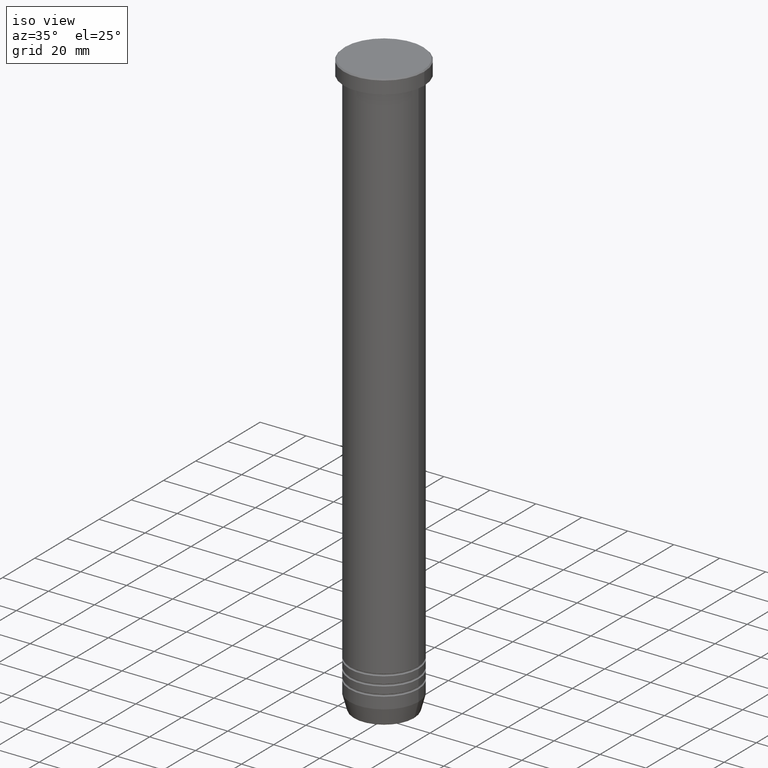
[diagram: clean part render]
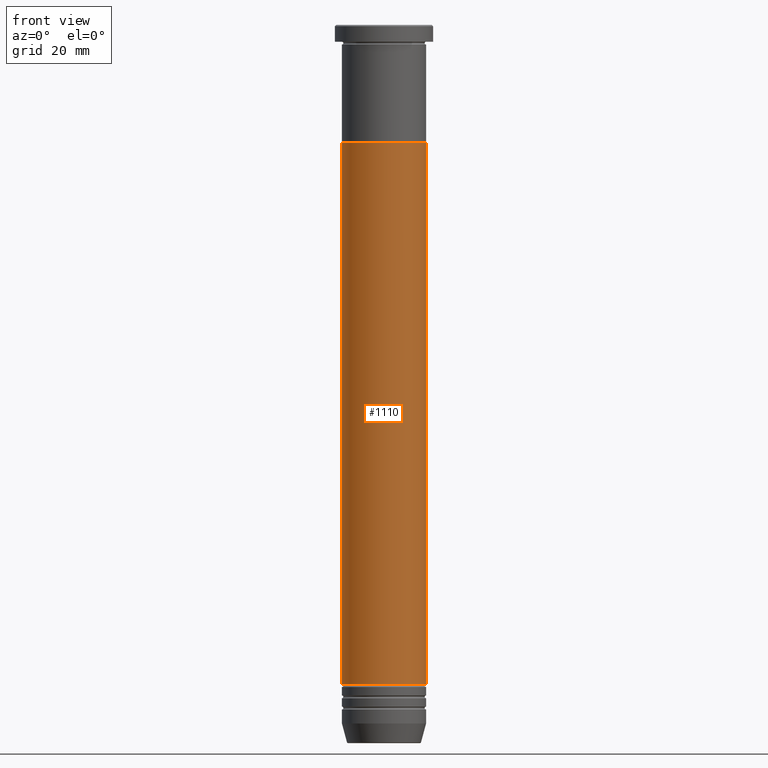
[diagram: tour spotlight — one face highlighted and labeled with its STEP entity id]
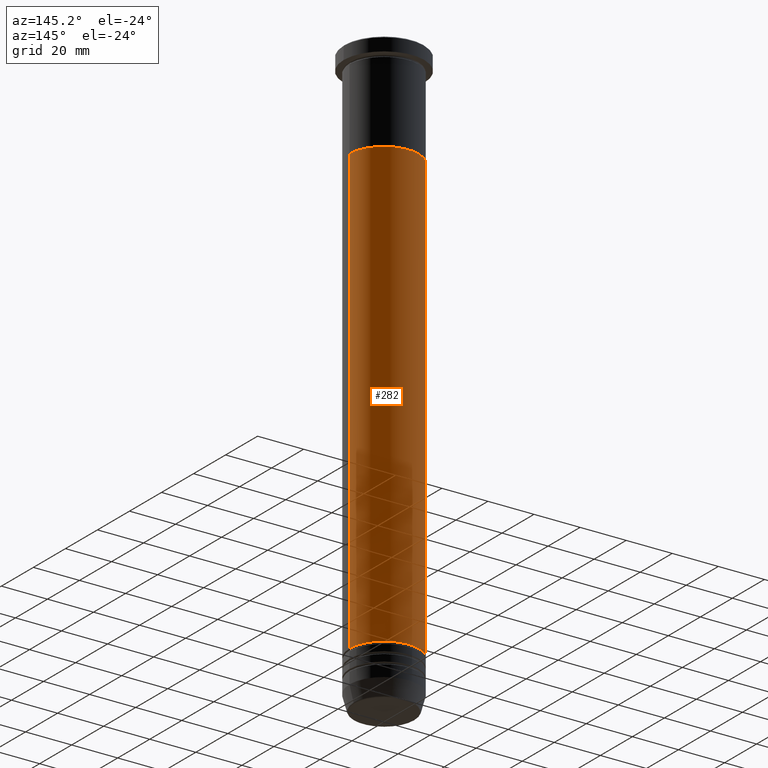
[diagram: tour spotlight — one face highlighted and labeled with its STEP entity id]
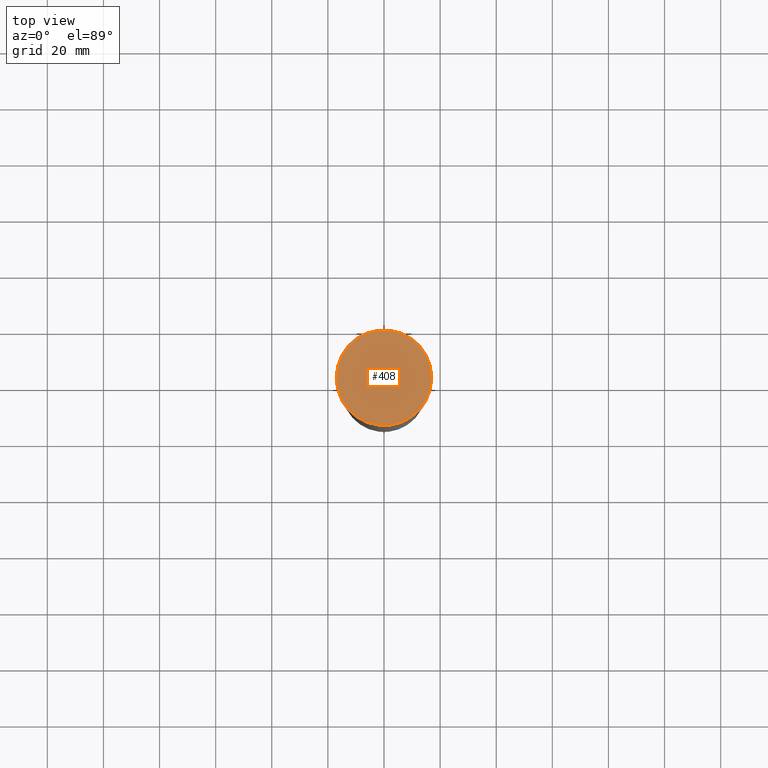
[diagram: tour spotlight — one face highlighted and labeled with its STEP entity id]
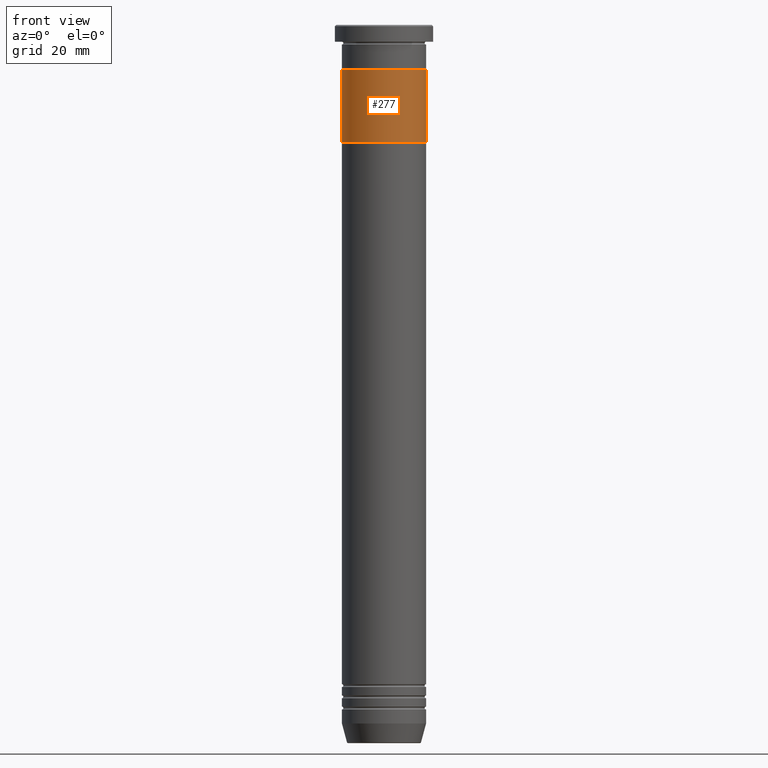
[diagram: tour spotlight — one face highlighted and labeled with its STEP entity id]
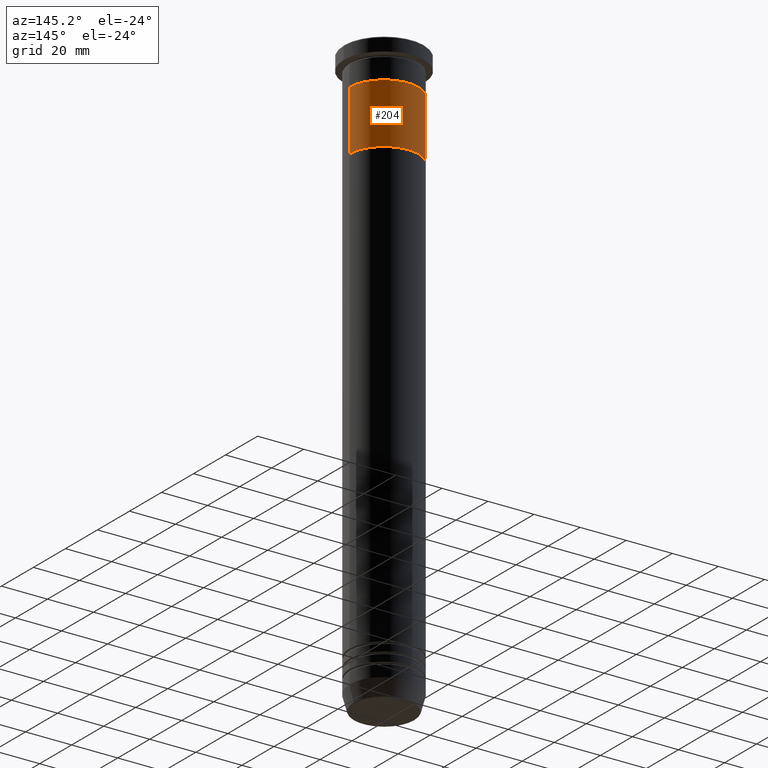
[diagram: tour spotlight — one face highlighted and labeled with its STEP entity id]
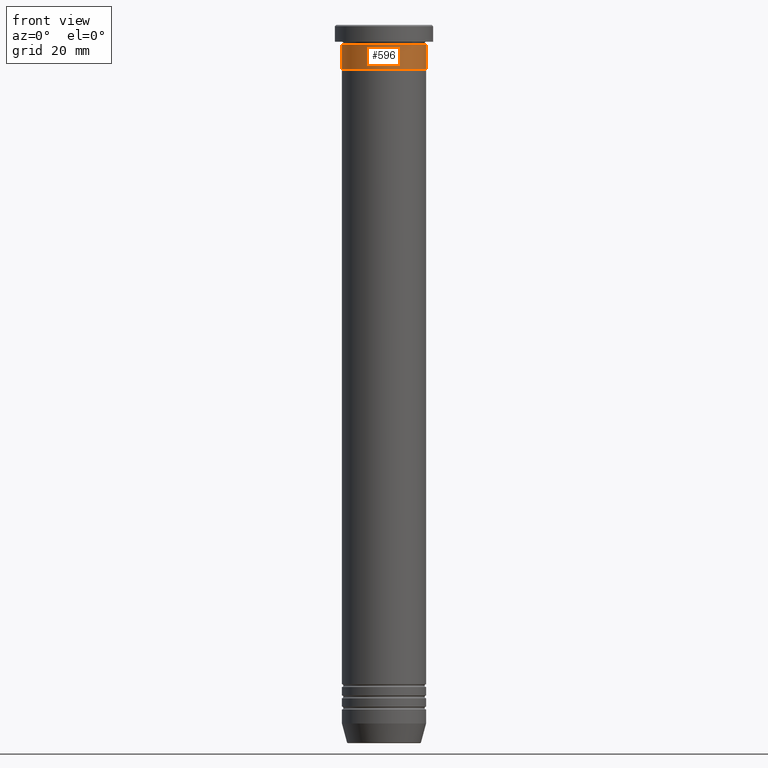
[diagram: tour spotlight — one face highlighted and labeled with its STEP entity id]
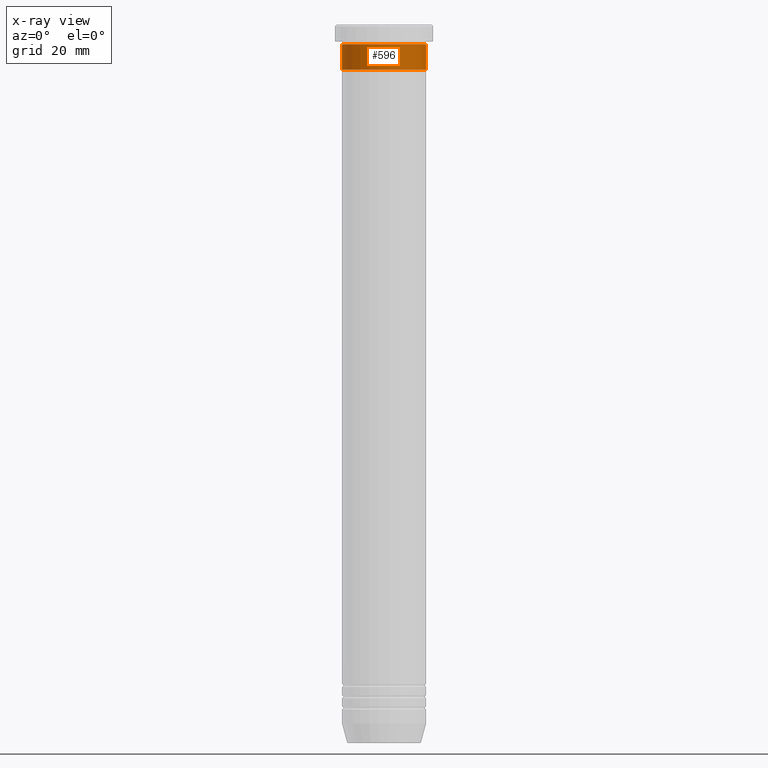
[diagram: x-ray of the same camera — body ghosted, this tour face saturated]
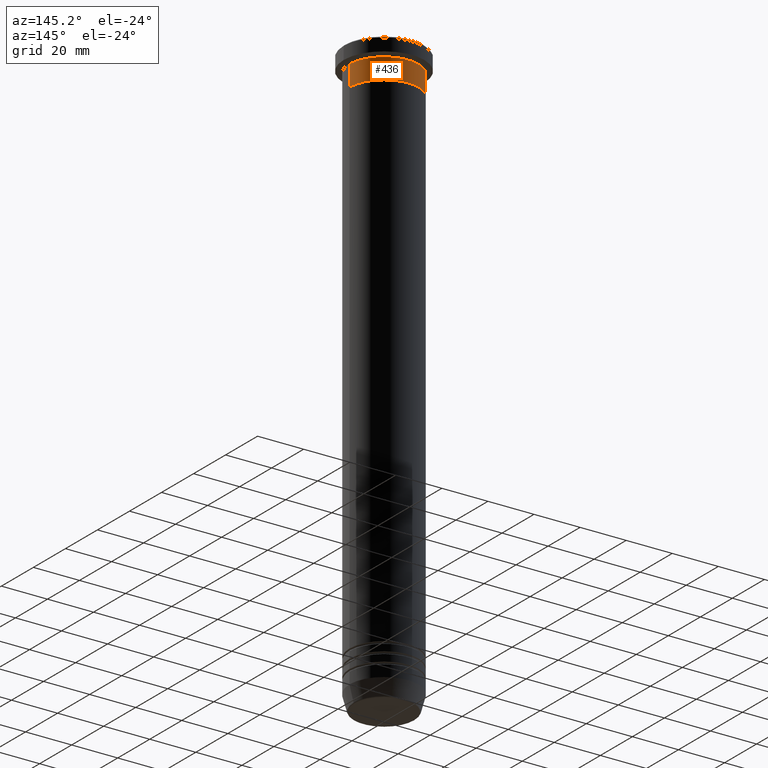
[diagram: tour spotlight — one face highlighted and labeled with its STEP entity id]
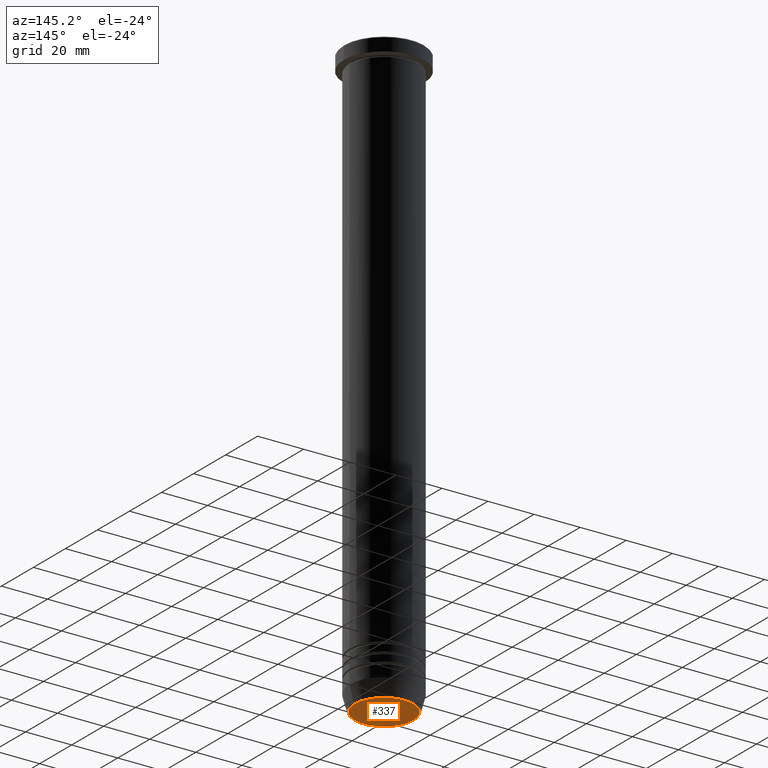
[diagram: tour spotlight — one face highlighted and labeled with its STEP entity id]
A machine part: a face-by-face anatomy tour. The part has 43 B-rep faces; the first image is the clean iso view, then the 8 largest visible faces are spotlighted one at a time (largest first), each with its STEP entity span.

Face 1 — front view, entity #1110. In plain terms, the highlighted cylindrical surface (partial cylindrical patch) has radius 15 mm, axis along (-0, -0, 1).
Definition (entity closure, byte-faithful):
#24 = EDGE_CURVE ( 'NONE', #921, #951, #678, .T. ) ;
#27 = DIRECTION ( 'NONE',  ( 1.000000000000000000, 0.000000000000000000, 0.000000000000000000 ) ) ;
#34 = CARTESIAN_POINT ( 'NONE',  ( 0.000000000000000000, 0.000000000000000000, 0.000000000000000000 ) ) ;
#46 = AXIS2_PLACEMENT_3D ( 'NONE', #960, #1044, #740 ) ;
#53 = ORIENTED_EDGE ( 'NONE', *, *, #89, .T. ) ;
#67 = LINE ( 'NONE', #246, #966 ) ;
#89 = EDGE_CURVE ( 'NONE', #318, #1130, #566, .T. ) ;
#174 = CARTESIAN_POINT ( 'NONE',  ( -14.99999999999999645, 1.836970198721029194E-15, 0.000000000000000000 ) ) ;
#246 = CARTESIAN_POINT ( 'NONE',  ( 14.99999999999999645, 0.000000000000000000, 0.000000000000000000 ) ) ;
#285 = VECTOR ( 'NONE', #631, 1000.000000000000000 ) ;
#294 = DIRECTION ( 'NONE',  ( -0.000000000000000000, -0.000000000000000000, 1.000000000000000000 ) ) ;
#318 = VERTEX_POINT ( 'NONE', #1142 ) ;
#320 = CARTESIAN_POINT ( 'NONE',  ( 14.99999999999999112, 0.000000000000000000, -235.0000000000000284 ) ) ;
#325 = AXIS2_PLACEMENT_3D ( 'NONE', #433, #521, #1055 ) ;
#351 = LINE ( 'NONE', #174, #285 ) ;
#355 = CARTESIAN_POINT ( 'NONE',  ( 15.00000000000000000, 0.000000000000000000, -41.99999999999999289 ) ) ;
#433 = CARTESIAN_POINT ( 'NONE',  ( 0.000000000000000000, 0.000000000000000000, -41.99999999999999289 ) ) ;
#521 = DIRECTION ( 'NONE',  ( -0.000000000000000000, -0.000000000000000000, 1.000000000000000000 ) ) ;
#555 = CYLINDRICAL_SURFACE ( 'NONE', #1009, 14.99999999999999645 ) ;
#566 = CIRCLE ( 'NONE', #46, 14.99999999999999112 ) ;
#571 = EDGE_LOOP ( 'NONE', ( #1088, #53, #938, #722 ) ) ;
#631 = DIRECTION ( 'NONE',  ( -0.000000000000000000, -0.000000000000000000, 1.000000000000000000 ) ) ;
#649 = EDGE_CURVE ( 'NONE', #1130, #951, #67, .T. ) ;
#678 = CIRCLE ( 'NONE', #325, 15.00000000000000000 ) ;
#705 = CARTESIAN_POINT ( 'NONE',  ( -15.00000000000000000, 1.836970198721029589E-15, -41.99999999999999289 ) ) ;
#722 = ORIENTED_EDGE ( 'NONE', *, *, #24, .F. ) ;
#740 = DIRECTION ( 'NONE',  ( 1.000000000000000000, 0.000000000000000000, 0.000000000000000000 ) ) ;
#862 = DIRECTION ( 'NONE',  ( -0.000000000000000000, -0.000000000000000000, 1.000000000000000000 ) ) ;
#916 = FACE_OUTER_BOUND ( 'NONE', #571, .T. ) ;
#921 = VERTEX_POINT ( 'NONE', #705 ) ;
#938 = ORIENTED_EDGE ( 'NONE', *, *, #649, .T. ) ;
#951 = VERTEX_POINT ( 'NONE', #355 ) ;
#960 = CARTESIAN_POINT ( 'NONE',  ( 0.000000000000000000, 0.000000000000000000, -235.0000000000000284 ) ) ;
#966 = VECTOR ( 'NONE', #862, 1000.000000000000000 ) ;
#978 = EDGE_CURVE ( 'NONE', #318, #921, #351, .T. ) ;
#1009 = AXIS2_PLACEMENT_3D ( 'NONE', #34, #294, #27 ) ;
#1044 = DIRECTION ( 'NONE',  ( -0.000000000000000000, -0.000000000000000000, 1.000000000000000000 ) ) ;
#1055 = DIRECTION ( 'NONE',  ( 1.000000000000000000, 0.000000000000000000, 0.000000000000000000 ) ) ;
#1088 = ORIENTED_EDGE ( 'NONE', *, *, #978, .F. ) ;
#1110 = ADVANCED_FACE ( 'NONE', ( #916 ), #555, .T. ) ;
#1130 = VERTEX_POINT ( 'NONE', #320 ) ;
#1142 = CARTESIAN_POINT ( 'NONE',  ( -14.99999999999999112, 1.836970198721028800E-15, -235.0000000000000284 ) ) ;

Face 2 — auxiliary view, entity #282. In plain terms, the highlighted cylindrical surface (partial cylindrical patch) has radius 15 mm, axis along (-0, -0, 1).
Definition (entity closure, byte-faithful):
#7 = AXIS2_PLACEMENT_3D ( 'NONE', #86, #529, #165 ) ;
#44 = EDGE_CURVE ( 'NONE', #951, #921, #264, .T. ) ;
#67 = LINE ( 'NONE', #246, #966 ) ;
#86 = CARTESIAN_POINT ( 'NONE',  ( 0.000000000000000000, 0.000000000000000000, -41.99999999999999289 ) ) ;
#165 = DIRECTION ( 'NONE',  ( 1.000000000000000000, 0.000000000000000000, 0.000000000000000000 ) ) ;
#166 = AXIS2_PLACEMENT_3D ( 'NONE', #516, #230, #769 ) ;
#173 = EDGE_CURVE ( 'NONE', #1130, #318, #281, .T. ) ;
#174 = CARTESIAN_POINT ( 'NONE',  ( -14.99999999999999645, 1.836970198721029194E-15, 0.000000000000000000 ) ) ;
#219 = DIRECTION ( 'NONE',  ( 1.000000000000000000, 0.000000000000000000, 0.000000000000000000 ) ) ;
#230 = DIRECTION ( 'NONE',  ( -0.000000000000000000, -0.000000000000000000, 1.000000000000000000 ) ) ;
#246 = CARTESIAN_POINT ( 'NONE',  ( 14.99999999999999645, 0.000000000000000000, 0.000000000000000000 ) ) ;
#264 = CIRCLE ( 'NONE', #7, 15.00000000000000000 ) ;
#281 = CIRCLE ( 'NONE', #1004, 14.99999999999999112 ) ;
#282 = ADVANCED_FACE ( 'NONE', ( #613 ), #594, .T. ) ;
#285 = VECTOR ( 'NONE', #631, 1000.000000000000000 ) ;
#318 = VERTEX_POINT ( 'NONE', #1142 ) ;
#320 = CARTESIAN_POINT ( 'NONE',  ( 14.99999999999999112, 0.000000000000000000, -235.0000000000000284 ) ) ;
#351 = LINE ( 'NONE', #174, #285 ) ;
#355 = CARTESIAN_POINT ( 'NONE',  ( 15.00000000000000000, 0.000000000000000000, -41.99999999999999289 ) ) ;
#516 = CARTESIAN_POINT ( 'NONE',  ( 0.000000000000000000, 0.000000000000000000, 0.000000000000000000 ) ) ;
#529 = DIRECTION ( 'NONE',  ( -0.000000000000000000, -0.000000000000000000, 1.000000000000000000 ) ) ;
#552 = ORIENTED_EDGE ( 'NONE', *, *, #173, .T. ) ;
#574 = DIRECTION ( 'NONE',  ( -0.000000000000000000, -0.000000000000000000, 1.000000000000000000 ) ) ;
#594 = CYLINDRICAL_SURFACE ( 'NONE', #166, 14.99999999999999645 ) ;
#613 = FACE_OUTER_BOUND ( 'NONE', #840, .T. ) ;
#631 = DIRECTION ( 'NONE',  ( -0.000000000000000000, -0.000000000000000000, 1.000000000000000000 ) ) ;
#649 = EDGE_CURVE ( 'NONE', #1130, #951, #67, .T. ) ;
#705 = CARTESIAN_POINT ( 'NONE',  ( -15.00000000000000000, 1.836970198721029589E-15, -41.99999999999999289 ) ) ;
#769 = DIRECTION ( 'NONE',  ( 1.000000000000000000, 0.000000000000000000, 0.000000000000000000 ) ) ;
#840 = EDGE_LOOP ( 'NONE', ( #552, #900, #1019, #901 ) ) ;
#862 = DIRECTION ( 'NONE',  ( -0.000000000000000000, -0.000000000000000000, 1.000000000000000000 ) ) ;
#900 = ORIENTED_EDGE ( 'NONE', *, *, #978, .T. ) ;
#901 = ORIENTED_EDGE ( 'NONE', *, *, #649, .F. ) ;
#921 = VERTEX_POINT ( 'NONE', #705 ) ;
#951 = VERTEX_POINT ( 'NONE', #355 ) ;
#966 = VECTOR ( 'NONE', #862, 1000.000000000000000 ) ;
#978 = EDGE_CURVE ( 'NONE', #318, #921, #351, .T. ) ;
#1004 = AXIS2_PLACEMENT_3D ( 'NONE', #1015, #574, #219 ) ;
#1015 = CARTESIAN_POINT ( 'NONE',  ( 0.000000000000000000, 0.000000000000000000, -235.0000000000000284 ) ) ;
#1019 = ORIENTED_EDGE ( 'NONE', *, *, #44, .F. ) ;
#1130 = VERTEX_POINT ( 'NONE', #320 ) ;
#1142 = CARTESIAN_POINT ( 'NONE',  ( -14.99999999999999112, 1.836970198721028800E-15, -235.0000000000000284 ) ) ;

Face 3 — top view, entity #408. In plain terms, the highlighted planar face has unit normal (0, -0, 1).
Definition (entity closure, byte-faithful):
#126 = EDGE_CURVE ( 'NONE', #989, #878, #713, .T. ) ;
#162 = CARTESIAN_POINT ( 'NONE',  ( 17.00000000000000000, 2.112515728529184067E-15, 0.000000000000000000 ) ) ;
#170 = PLANE ( 'NONE',  #519 ) ;
#193 = ORIENTED_EDGE ( 'NONE', *, *, #828, .T. ) ;
#250 = EDGE_LOOP ( 'NONE', ( #193, #517 ) ) ;
#274 = DIRECTION ( 'NONE',  ( 1.000000000000000000, 0.000000000000000000, 0.000000000000000000 ) ) ;
#275 = DIRECTION ( 'NONE',  ( 1.000000000000000000, 0.000000000000000000, 0.000000000000000000 ) ) ;
#310 = AXIS2_PLACEMENT_3D ( 'NONE', #445, #719, #274 ) ;
#408 = ADVANCED_FACE ( 'NONE', ( #1075 ), #170, .T. ) ;
#445 = CARTESIAN_POINT ( 'NONE',  ( 0.000000000000000000, 0.000000000000000000, 0.000000000000000000 ) ) ;
#473 = CARTESIAN_POINT ( 'NONE',  ( -17.00000000000000000, 0.000000000000000000, 0.000000000000000000 ) ) ;
#517 = ORIENTED_EDGE ( 'NONE', *, *, #126, .T. ) ;
#519 = AXIS2_PLACEMENT_3D ( 'NONE', #527, #720, #275 ) ;
#527 = CARTESIAN_POINT ( 'NONE',  ( 0.000000000000000000, 0.000000000000000000, 0.000000000000000000 ) ) ;
#620 = AXIS2_PLACEMENT_3D ( 'NONE', #922, #761, #835 ) ;
#684 = CIRCLE ( 'NONE', #310, 17.00000000000000000 ) ;
#713 = CIRCLE ( 'NONE', #620, 17.00000000000000000 ) ;
#719 = DIRECTION ( 'NONE',  ( -0.000000000000000000, -0.000000000000000000, 1.000000000000000000 ) ) ;
#720 = DIRECTION ( 'NONE',  ( 0.000000000000000000, -0.000000000000000000, 1.000000000000000000 ) ) ;
#761 = DIRECTION ( 'NONE',  ( -0.000000000000000000, -0.000000000000000000, 1.000000000000000000 ) ) ;
#828 = EDGE_CURVE ( 'NONE', #878, #989, #684, .T. ) ;
#835 = DIRECTION ( 'NONE',  ( 1.000000000000000000, 0.000000000000000000, 0.000000000000000000 ) ) ;
#878 = VERTEX_POINT ( 'NONE', #473 ) ;
#922 = CARTESIAN_POINT ( 'NONE',  ( 0.000000000000000000, 0.000000000000000000, 0.000000000000000000 ) ) ;
#989 = VERTEX_POINT ( 'NONE', #162 ) ;
#1075 = FACE_OUTER_BOUND ( 'NONE', #250, .T. ) ;

Face 4 — front view, entity #277. In plain terms, the highlighted cylindrical surface (partial cylindrical patch) has radius 15 mm, axis along (-0, -0, 1).
Definition (entity closure, byte-faithful):
#5 = LINE ( 'NONE', #360, #1082 ) ;
#16 = VERTEX_POINT ( 'NONE', #704 ) ;
#19 = VERTEX_POINT ( 'NONE', #106 ) ;
#29 = ORIENTED_EDGE ( 'NONE', *, *, #682, .F. ) ;
#58 = DIRECTION ( 'NONE',  ( -0.000000000000000000, -0.000000000000000000, 1.000000000000000000 ) ) ;
#106 = CARTESIAN_POINT ( 'NONE',  ( -15.00000000000000000, 1.836970198721029194E-15, -16.00000000000000000 ) ) ;
#130 = DIRECTION ( 'NONE',  ( -1.000000000000000000, 0.000000000000000000, 0.000000000000000000 ) ) ;
#164 = FACE_OUTER_BOUND ( 'NONE', #829, .T. ) ;
#225 = CIRCLE ( 'NONE', #343, 15.00000000000000000 ) ;
#277 = ADVANCED_FACE ( 'NONE', ( #164 ), #948, .T. ) ;
#304 = VERTEX_POINT ( 'NONE', #1132 ) ;
#313 = CARTESIAN_POINT ( 'NONE',  ( 0.000000000000000000, 0.000000000000000000, -16.00000000000000000 ) ) ;
#331 = CARTESIAN_POINT ( 'NONE',  ( -15.00000000000000000, 1.836970198721029194E-15, -41.99999999999999289 ) ) ;
#343 = AXIS2_PLACEMENT_3D ( 'NONE', #313, #926, #130 ) ;
#360 = CARTESIAN_POINT ( 'NONE',  ( 15.00000000000000000, 0.000000000000000000, -41.99999999999999289 ) ) ;
#365 = VERTEX_POINT ( 'NONE', #1072 ) ;
#372 = ORIENTED_EDGE ( 'NONE', *, *, #1049, .T. ) ;
#589 = EDGE_CURVE ( 'NONE', #365, #19, #225, .T. ) ;
#607 = DIRECTION ( 'NONE',  ( 1.000000000000000000, 0.000000000000000000, 0.000000000000000000 ) ) ;
#682 = EDGE_CURVE ( 'NONE', #304, #19, #952, .T. ) ;
#694 = AXIS2_PLACEMENT_3D ( 'NONE', #853, #58, #607 ) ;
#701 = EDGE_CURVE ( 'NONE', #16, #304, #731, .T. ) ;
#702 = DIRECTION ( 'NONE',  ( 0.000000000000000000, 0.000000000000000000, -1.000000000000000000 ) ) ;
#704 = CARTESIAN_POINT ( 'NONE',  ( 15.00000000000000000, 0.000000000000000000, -41.99999999999999289 ) ) ;
#714 = VECTOR ( 'NONE', #780, 1000.000000000000000 ) ;
#731 = CIRCLE ( 'NONE', #1062, 15.00000000000000000 ) ;
#780 = DIRECTION ( 'NONE',  ( -0.000000000000000000, -0.000000000000000000, 1.000000000000000000 ) ) ;
#829 = EDGE_LOOP ( 'NONE', ( #29, #1067, #372, #1106 ) ) ;
#844 = DIRECTION ( 'NONE',  ( -1.000000000000000000, 0.000000000000000000, 0.000000000000000000 ) ) ;
#853 = CARTESIAN_POINT ( 'NONE',  ( 0.000000000000000000, 0.000000000000000000, -41.99999999999999289 ) ) ;
#926 = DIRECTION ( 'NONE',  ( 0.000000000000000000, 0.000000000000000000, -1.000000000000000000 ) ) ;
#937 = CARTESIAN_POINT ( 'NONE',  ( 0.000000000000000000, 0.000000000000000000, -41.99999999999999289 ) ) ;
#948 = CYLINDRICAL_SURFACE ( 'NONE', #694, 15.00000000000000000 ) ;
#952 = LINE ( 'NONE', #331, #714 ) ;
#1049 = EDGE_CURVE ( 'NONE', #16, #365, #5, .T. ) ;
#1062 = AXIS2_PLACEMENT_3D ( 'NONE', #937, #702, #844 ) ;
#1064 = DIRECTION ( 'NONE',  ( -0.000000000000000000, -0.000000000000000000, 1.000000000000000000 ) ) ;
#1067 = ORIENTED_EDGE ( 'NONE', *, *, #701, .F. ) ;
#1072 = CARTESIAN_POINT ( 'NONE',  ( 15.00000000000000000, 0.000000000000000000, -16.00000000000000000 ) ) ;
#1082 = VECTOR ( 'NONE', #1064, 1000.000000000000000 ) ;
#1106 = ORIENTED_EDGE ( 'NONE', *, *, #589, .T. ) ;
#1132 = CARTESIAN_POINT ( 'NONE',  ( -15.00000000000000000, 1.836970198721029194E-15, -41.99999999999999289 ) ) ;

Face 5 — auxiliary view, entity #204. In plain terms, the highlighted cylindrical surface (partial cylindrical patch) has radius 15 mm, axis along (-0, -0, 1).
Definition (entity closure, byte-faithful):
#5 = LINE ( 'NONE', #360, #1082 ) ;
#16 = VERTEX_POINT ( 'NONE', #704 ) ;
#19 = VERTEX_POINT ( 'NONE', #106 ) ;
#33 = EDGE_LOOP ( 'NONE', ( #573, #590, #340, #659 ) ) ;
#42 = CARTESIAN_POINT ( 'NONE',  ( 0.000000000000000000, 0.000000000000000000, -41.99999999999999289 ) ) ;
#106 = CARTESIAN_POINT ( 'NONE',  ( -15.00000000000000000, 1.836970198721029194E-15, -16.00000000000000000 ) ) ;
#144 = EDGE_CURVE ( 'NONE', #304, #16, #184, .T. ) ;
#184 = CIRCLE ( 'NONE', #964, 15.00000000000000000 ) ;
#204 = ADVANCED_FACE ( 'NONE', ( #241 ), #1128, .T. ) ;
#241 = FACE_OUTER_BOUND ( 'NONE', #33, .T. ) ;
#260 = CARTESIAN_POINT ( 'NONE',  ( 0.000000000000000000, 0.000000000000000000, -16.00000000000000000 ) ) ;
#304 = VERTEX_POINT ( 'NONE', #1132 ) ;
#331 = CARTESIAN_POINT ( 'NONE',  ( -15.00000000000000000, 1.836970198721029194E-15, -41.99999999999999289 ) ) ;
#340 = ORIENTED_EDGE ( 'NONE', *, *, #370, .T. ) ;
#360 = CARTESIAN_POINT ( 'NONE',  ( 15.00000000000000000, 0.000000000000000000, -41.99999999999999289 ) ) ;
#365 = VERTEX_POINT ( 'NONE', #1072 ) ;
#370 = EDGE_CURVE ( 'NONE', #19, #365, #585, .T. ) ;
#395 = DIRECTION ( 'NONE',  ( 0.000000000000000000, 0.000000000000000000, -1.000000000000000000 ) ) ;
#466 = AXIS2_PLACEMENT_3D ( 'NONE', #958, #775, #1136 ) ;
#538 = DIRECTION ( 'NONE',  ( 0.000000000000000000, 0.000000000000000000, -1.000000000000000000 ) ) ;
#573 = ORIENTED_EDGE ( 'NONE', *, *, #144, .F. ) ;
#585 = CIRCLE ( 'NONE', #728, 15.00000000000000000 ) ;
#590 = ORIENTED_EDGE ( 'NONE', *, *, #682, .T. ) ;
#659 = ORIENTED_EDGE ( 'NONE', *, *, #1049, .F. ) ;
#682 = EDGE_CURVE ( 'NONE', #304, #19, #952, .T. ) ;
#704 = CARTESIAN_POINT ( 'NONE',  ( 15.00000000000000000, 0.000000000000000000, -41.99999999999999289 ) ) ;
#714 = VECTOR ( 'NONE', #780, 1000.000000000000000 ) ;
#728 = AXIS2_PLACEMENT_3D ( 'NONE', #260, #538, #889 ) ;
#744 = DIRECTION ( 'NONE',  ( -1.000000000000000000, 0.000000000000000000, 0.000000000000000000 ) ) ;
#775 = DIRECTION ( 'NONE',  ( -0.000000000000000000, -0.000000000000000000, 1.000000000000000000 ) ) ;
#780 = DIRECTION ( 'NONE',  ( -0.000000000000000000, -0.000000000000000000, 1.000000000000000000 ) ) ;
#889 = DIRECTION ( 'NONE',  ( -1.000000000000000000, 0.000000000000000000, 0.000000000000000000 ) ) ;
#952 = LINE ( 'NONE', #331, #714 ) ;
#958 = CARTESIAN_POINT ( 'NONE',  ( 0.000000000000000000, 0.000000000000000000, -41.99999999999999289 ) ) ;
#964 = AXIS2_PLACEMENT_3D ( 'NONE', #42, #395, #744 ) ;
#1049 = EDGE_CURVE ( 'NONE', #16, #365, #5, .T. ) ;
#1064 = DIRECTION ( 'NONE',  ( -0.000000000000000000, -0.000000000000000000, 1.000000000000000000 ) ) ;
#1072 = CARTESIAN_POINT ( 'NONE',  ( 15.00000000000000000, 0.000000000000000000, -16.00000000000000000 ) ) ;
#1082 = VECTOR ( 'NONE', #1064, 1000.000000000000000 ) ;
#1128 = CYLINDRICAL_SURFACE ( 'NONE', #466, 15.00000000000000000 ) ;
#1132 = CARTESIAN_POINT ( 'NONE',  ( -15.00000000000000000, 1.836970198721029194E-15, -41.99999999999999289 ) ) ;
#1136 = DIRECTION ( 'NONE',  ( 1.000000000000000000, 0.000000000000000000, 0.000000000000000000 ) ) ;

Face 6 — front view, entity #596. An x-ray twin of the same camera follows (body ghosted, this face saturated) — the face is partly hidden behind the body. In plain terms, the highlighted cylindrical surface (partial cylindrical patch) has radius 15 mm, axis along (-0, -0, 1).
Definition (entity closure, byte-faithful):
#17 = DIRECTION ( 'NONE',  ( -0.000000000000000000, -0.000000000000000000, 1.000000000000000000 ) ) ;
#57 = VERTEX_POINT ( 'NONE', #736 ) ;
#77 = VECTOR ( 'NONE', #833, 1000.000000000000000 ) ;
#88 = CARTESIAN_POINT ( 'NONE',  ( -15.00000000000000000, 1.836970198721029589E-15, 0.000000000000000000 ) ) ;
#104 = DIRECTION ( 'NONE',  ( 1.000000000000000000, 0.000000000000000000, 0.000000000000000000 ) ) ;
#120 = VERTEX_POINT ( 'NONE', #560 ) ;
#137 = CARTESIAN_POINT ( 'NONE',  ( 15.00000000000000000, 0.000000000000000000, 0.000000000000000000 ) ) ;
#138 = EDGE_LOOP ( 'NONE', ( #635, #642, #229, #210 ) ) ;
#171 = VERTEX_POINT ( 'NONE', #214 ) ;
#210 = ORIENTED_EDGE ( 'NONE', *, *, #564, .F. ) ;
#214 = CARTESIAN_POINT ( 'NONE',  ( -15.00000000000000000, 1.836970198721029589E-15, -6.999999999999999112 ) ) ;
#229 = ORIENTED_EDGE ( 'NONE', *, *, #508, .T. ) ;
#266 = CIRCLE ( 'NONE', #504, 15.00000000000000000 ) ;
#335 = FACE_OUTER_BOUND ( 'NONE', #138, .T. ) ;
#382 = VECTOR ( 'NONE', #633, 1000.000000000000000 ) ;
#394 = VERTEX_POINT ( 'NONE', #805 ) ;
#435 = EDGE_CURVE ( 'NONE', #394, #120, #266, .T. ) ;
#501 = DIRECTION ( 'NONE',  ( -0.000000000000000000, -0.000000000000000000, 1.000000000000000000 ) ) ;
#504 = AXIS2_PLACEMENT_3D ( 'NONE', #973, #17, #104 ) ;
#508 = EDGE_CURVE ( 'NONE', #120, #57, #583, .T. ) ;
#560 = CARTESIAN_POINT ( 'NONE',  ( 15.00000000000000000, 0.000000000000000000, -16.00000000000000000 ) ) ;
#564 = EDGE_CURVE ( 'NONE', #171, #57, #911, .T. ) ;
#583 = LINE ( 'NONE', #137, #77 ) ;
#596 = ADVANCED_FACE ( 'NONE', ( #335 ), #1139, .T. ) ;
#633 = DIRECTION ( 'NONE',  ( -0.000000000000000000, -0.000000000000000000, 1.000000000000000000 ) ) ;
#635 = ORIENTED_EDGE ( 'NONE', *, *, #846, .F. ) ;
#642 = ORIENTED_EDGE ( 'NONE', *, *, #435, .T. ) ;
#692 = CARTESIAN_POINT ( 'NONE',  ( 0.000000000000000000, 0.000000000000000000, 0.000000000000000000 ) ) ;
#736 = CARTESIAN_POINT ( 'NONE',  ( 15.00000000000000000, 0.000000000000000000, -6.999999999999999112 ) ) ;
#742 = DIRECTION ( 'NONE',  ( 1.000000000000000000, 0.000000000000000000, 0.000000000000000000 ) ) ;
#805 = CARTESIAN_POINT ( 'NONE',  ( -15.00000000000000000, 1.836970198721029589E-15, -16.00000000000000000 ) ) ;
#827 = DIRECTION ( 'NONE',  ( -0.000000000000000000, -0.000000000000000000, 1.000000000000000000 ) ) ;
#833 = DIRECTION ( 'NONE',  ( -0.000000000000000000, -0.000000000000000000, 1.000000000000000000 ) ) ;
#846 = EDGE_CURVE ( 'NONE', #394, #171, #884, .T. ) ;
#884 = LINE ( 'NONE', #88, #382 ) ;
#911 = CIRCLE ( 'NONE', #1140, 15.00000000000000000 ) ;
#973 = CARTESIAN_POINT ( 'NONE',  ( 0.000000000000000000, 0.000000000000000000, -16.00000000000000000 ) ) ;
#1024 = AXIS2_PLACEMENT_3D ( 'NONE', #692, #501, #1029 ) ;
#1029 = DIRECTION ( 'NONE',  ( 1.000000000000000000, 0.000000000000000000, 0.000000000000000000 ) ) ;
#1090 = CARTESIAN_POINT ( 'NONE',  ( 0.000000000000000000, 0.000000000000000000, -6.999999999999999112 ) ) ;
#1139 = CYLINDRICAL_SURFACE ( 'NONE', #1024, 15.00000000000000000 ) ;
#1140 = AXIS2_PLACEMENT_3D ( 'NONE', #1090, #827, #742 ) ;

Face 7 — auxiliary view, entity #436. In plain terms, the highlighted cylindrical surface (partial cylindrical patch) has radius 15 mm, axis along (-0, -0, 1).
Definition (entity closure, byte-faithful):
#18 = ORIENTED_EDGE ( 'NONE', *, *, #1107, .T. ) ;
#47 = AXIS2_PLACEMENT_3D ( 'NONE', #1017, #478, #1000 ) ;
#57 = VERTEX_POINT ( 'NONE', #736 ) ;
#77 = VECTOR ( 'NONE', #833, 1000.000000000000000 ) ;
#80 = AXIS2_PLACEMENT_3D ( 'NONE', #991, #197, #289 ) ;
#84 = FACE_OUTER_BOUND ( 'NONE', #711, .T. ) ;
#88 = CARTESIAN_POINT ( 'NONE',  ( -15.00000000000000000, 1.836970198721029589E-15, 0.000000000000000000 ) ) ;
#120 = VERTEX_POINT ( 'NONE', #560 ) ;
#137 = CARTESIAN_POINT ( 'NONE',  ( 15.00000000000000000, 0.000000000000000000, 0.000000000000000000 ) ) ;
#150 = AXIS2_PLACEMENT_3D ( 'NONE', #988, #459, #1065 ) ;
#171 = VERTEX_POINT ( 'NONE', #214 ) ;
#197 = DIRECTION ( 'NONE',  ( -0.000000000000000000, -0.000000000000000000, 1.000000000000000000 ) ) ;
#214 = CARTESIAN_POINT ( 'NONE',  ( -15.00000000000000000, 1.836970198721029589E-15, -6.999999999999999112 ) ) ;
#248 = CIRCLE ( 'NONE', #80, 15.00000000000000000 ) ;
#289 = DIRECTION ( 'NONE',  ( 1.000000000000000000, 0.000000000000000000, 0.000000000000000000 ) ) ;
#374 = CYLINDRICAL_SURFACE ( 'NONE', #150, 15.00000000000000000 ) ;
#382 = VECTOR ( 'NONE', #633, 1000.000000000000000 ) ;
#394 = VERTEX_POINT ( 'NONE', #805 ) ;
#436 = ADVANCED_FACE ( 'NONE', ( #84 ), #374, .T. ) ;
#459 = DIRECTION ( 'NONE',  ( -0.000000000000000000, -0.000000000000000000, 1.000000000000000000 ) ) ;
#478 = DIRECTION ( 'NONE',  ( -0.000000000000000000, -0.000000000000000000, 1.000000000000000000 ) ) ;
#487 = EDGE_CURVE ( 'NONE', #57, #171, #1006, .T. ) ;
#508 = EDGE_CURVE ( 'NONE', #120, #57, #583, .T. ) ;
#560 = CARTESIAN_POINT ( 'NONE',  ( 15.00000000000000000, 0.000000000000000000, -16.00000000000000000 ) ) ;
#583 = LINE ( 'NONE', #137, #77 ) ;
#633 = DIRECTION ( 'NONE',  ( -0.000000000000000000, -0.000000000000000000, 1.000000000000000000 ) ) ;
#674 = ORIENTED_EDGE ( 'NONE', *, *, #846, .T. ) ;
#711 = EDGE_LOOP ( 'NONE', ( #18, #674, #852, #924 ) ) ;
#736 = CARTESIAN_POINT ( 'NONE',  ( 15.00000000000000000, 0.000000000000000000, -6.999999999999999112 ) ) ;
#805 = CARTESIAN_POINT ( 'NONE',  ( -15.00000000000000000, 1.836970198721029589E-15, -16.00000000000000000 ) ) ;
#833 = DIRECTION ( 'NONE',  ( -0.000000000000000000, -0.000000000000000000, 1.000000000000000000 ) ) ;
#846 = EDGE_CURVE ( 'NONE', #394, #171, #884, .T. ) ;
#852 = ORIENTED_EDGE ( 'NONE', *, *, #487, .F. ) ;
#884 = LINE ( 'NONE', #88, #382 ) ;
#924 = ORIENTED_EDGE ( 'NONE', *, *, #508, .F. ) ;
#988 = CARTESIAN_POINT ( 'NONE',  ( 0.000000000000000000, 0.000000000000000000, 0.000000000000000000 ) ) ;
#991 = CARTESIAN_POINT ( 'NONE',  ( 0.000000000000000000, 0.000000000000000000, -16.00000000000000000 ) ) ;
#1000 = DIRECTION ( 'NONE',  ( 1.000000000000000000, 0.000000000000000000, 0.000000000000000000 ) ) ;
#1006 = CIRCLE ( 'NONE', #47, 15.00000000000000000 ) ;
#1017 = CARTESIAN_POINT ( 'NONE',  ( 0.000000000000000000, 0.000000000000000000, -6.999999999999999112 ) ) ;
#1065 = DIRECTION ( 'NONE',  ( 1.000000000000000000, 0.000000000000000000, 0.000000000000000000 ) ) ;
#1107 = EDGE_CURVE ( 'NONE', #120, #394, #248, .T. ) ;

Face 8 — auxiliary view, entity #337. In plain terms, the highlighted planar face has unit normal (0, -0, 1).
Definition (entity closure, byte-faithful):
#13 = DIRECTION ( 'NONE',  ( 0.000000000000000000, 0.000000000000000000, -1.000000000000000000 ) ) ;
#41 = ORIENTED_EDGE ( 'NONE', *, *, #777, .T. ) ;
#68 = CARTESIAN_POINT ( 'NONE',  ( -12.74069215899266716, 1.589857736427682218E-15, -256.0000000000000000 ) ) ;
#91 = DIRECTION ( 'NONE',  ( 0.000000000000000000, -0.000000000000000000, 1.000000000000000000 ) ) ;
#110 = CARTESIAN_POINT ( 'NONE',  ( 12.74069215899266716, 0.000000000000000000, -256.0000000000000000 ) ) ;
#116 = CIRCLE ( 'NONE', #914, 12.74069215899266716 ) ;
#222 = VERTEX_POINT ( 'NONE', #68 ) ;
#265 = CARTESIAN_POINT ( 'NONE',  ( 0.000000000000000000, 0.000000000000000000, -256.0000000000000000 ) ) ;
#280 = DIRECTION ( 'NONE',  ( 1.000000000000000000, 0.000000000000000000, 0.000000000000000000 ) ) ;
#337 = ADVANCED_FACE ( 'NONE', ( #885 ), #641, .F. ) ;
#347 = CIRCLE ( 'NONE', #1126, 12.74069215899266716 ) ;
#364 = CARTESIAN_POINT ( 'NONE',  ( 0.000000000000000000, 2.406430960324549132E-14, -256.0000000000000000 ) ) ;
#563 = DIRECTION ( 'NONE',  ( 0.000000000000000000, 0.000000000000000000, -1.000000000000000000 ) ) ;
#641 = PLANE ( 'NONE',  #1078 ) ;
#777 = EDGE_CURVE ( 'NONE', #222, #874, #116, .T. ) ;
#817 = ORIENTED_EDGE ( 'NONE', *, *, #1120, .T. ) ;
#874 = VERTEX_POINT ( 'NONE', #110 ) ;
#885 = FACE_OUTER_BOUND ( 'NONE', #1060, .T. ) ;
#908 = DIRECTION ( 'NONE',  ( 1.000000000000000000, 0.000000000000000000, 0.000000000000000000 ) ) ;
#914 = AXIS2_PLACEMENT_3D ( 'NONE', #265, #13, #280 ) ;
#979 = DIRECTION ( 'NONE',  ( 1.000000000000000000, 0.000000000000000000, 0.000000000000000000 ) ) ;
#998 = CARTESIAN_POINT ( 'NONE',  ( 0.000000000000000000, 0.000000000000000000, -256.0000000000000000 ) ) ;
#1060 = EDGE_LOOP ( 'NONE', ( #817, #41 ) ) ;
#1078 = AXIS2_PLACEMENT_3D ( 'NONE', #364, #91, #979 ) ;
#1120 = EDGE_CURVE ( 'NONE', #874, #222, #347, .T. ) ;
#1126 = AXIS2_PLACEMENT_3D ( 'NONE', #998, #563, #908 ) ;